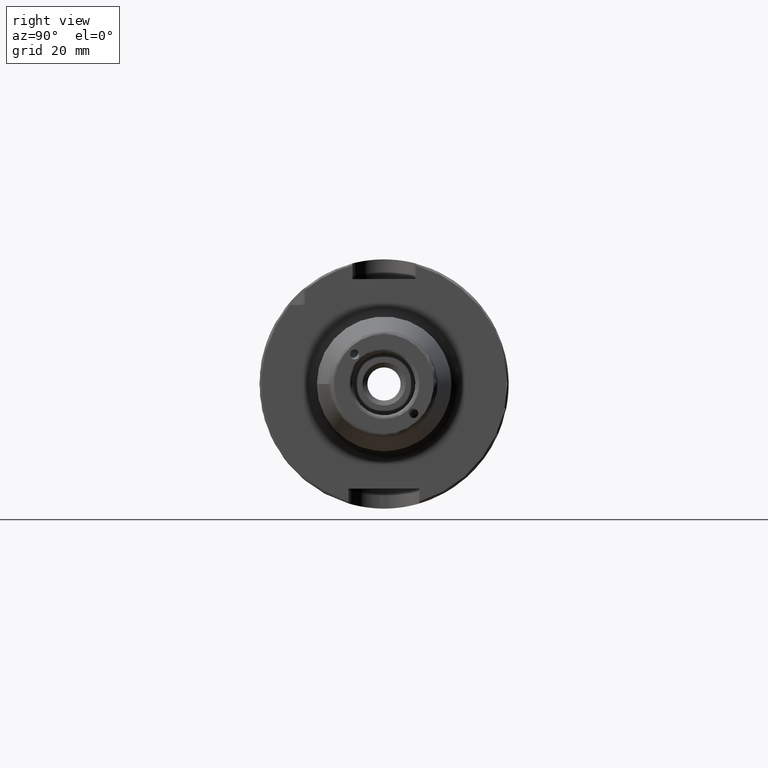
[diagram: clean part render]
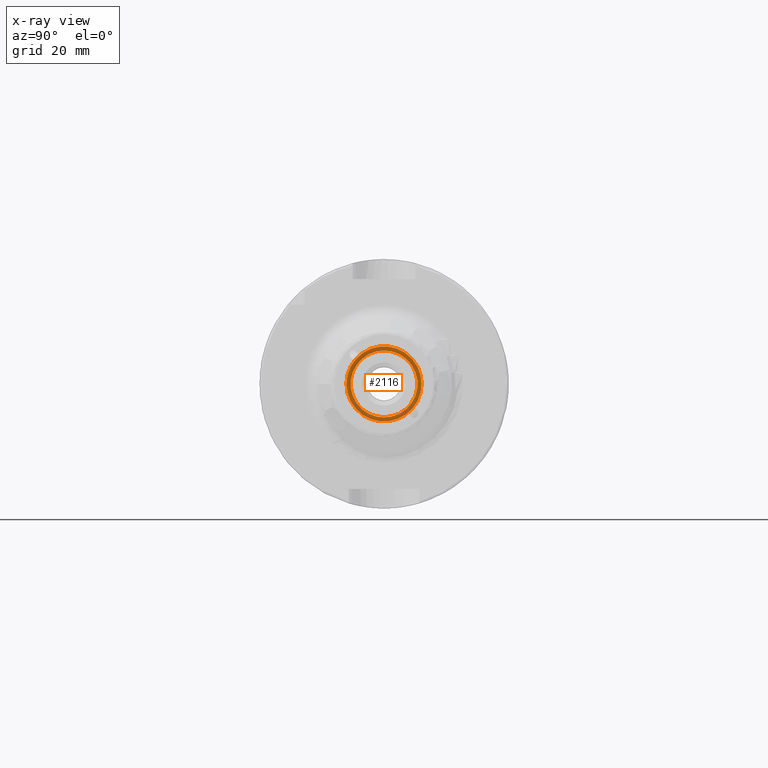
[diagram: x-ray — body ghosted, one internal face saturated and labeled with its STEP entity id]
A machine part, right view, then the same camera in x-ray: the body is ghosted and one INTERNAL B-rep face — a face not visible from any outside direction — is saturated and labeled: STEP entity #2116.
In plain terms, the highlighted planar face has unit normal (-1, 0, 0).
Its self-contained STEP definition (entity closure, byte-faithful):
#99=FACE_BOUND('',#455,.T.);
#141=PLANE('',#2382);
#323=FACE_OUTER_BOUND('',#454,.T.);
#454=EDGE_LOOP('',(#1937));
#455=EDGE_LOOP('',(#1938));
#797=CIRCLE('',#2373,8.458734);
#802=CIRCLE('',#2381,9.5);
#1010=VERTEX_POINT('',#4454);
#1014=VERTEX_POINT('',#4467);
#1320=EDGE_CURVE('',#1010,#1010,#797,.T.);
#1326=EDGE_CURVE('',#1014,#1014,#802,.T.);
#1937=ORIENTED_EDGE('',*,*,#1326,.F.);
#1938=ORIENTED_EDGE('',*,*,#1320,.T.);
#2116=ADVANCED_FACE('',(#323,#99),#141,.F.);
#2373=AXIS2_PLACEMENT_3D('',#4456,#2958,#2959);
#2381=AXIS2_PLACEMENT_3D('',#4469,#2975,#2976);
#2382=AXIS2_PLACEMENT_3D('',#4470,#2977,#2978);
#2958=DIRECTION('center_axis',(-1.,0.,0.));
#2959=DIRECTION('ref_axis',(0.,0.,1.));
#2975=DIRECTION('center_axis',(-1.,0.,0.));
#2976=DIRECTION('ref_axis',(0.,0.,1.));
#2977=DIRECTION('center_axis',(-1.,0.,0.));
#2978=DIRECTION('ref_axis',(0.,0.,1.));
#4454=CARTESIAN_POINT('',(17.,-1.03589615179389E-15,-8.458734));
#4456=CARTESIAN_POINT('Origin',(17.,0.,0.));
#4467=CARTESIAN_POINT('',(17.,-9.5,1.16341445918999E-15));
#4469=CARTESIAN_POINT('Origin',(17.,0.,0.));
#4470=CARTESIAN_POINT('Origin',(17.,7.5,0.));